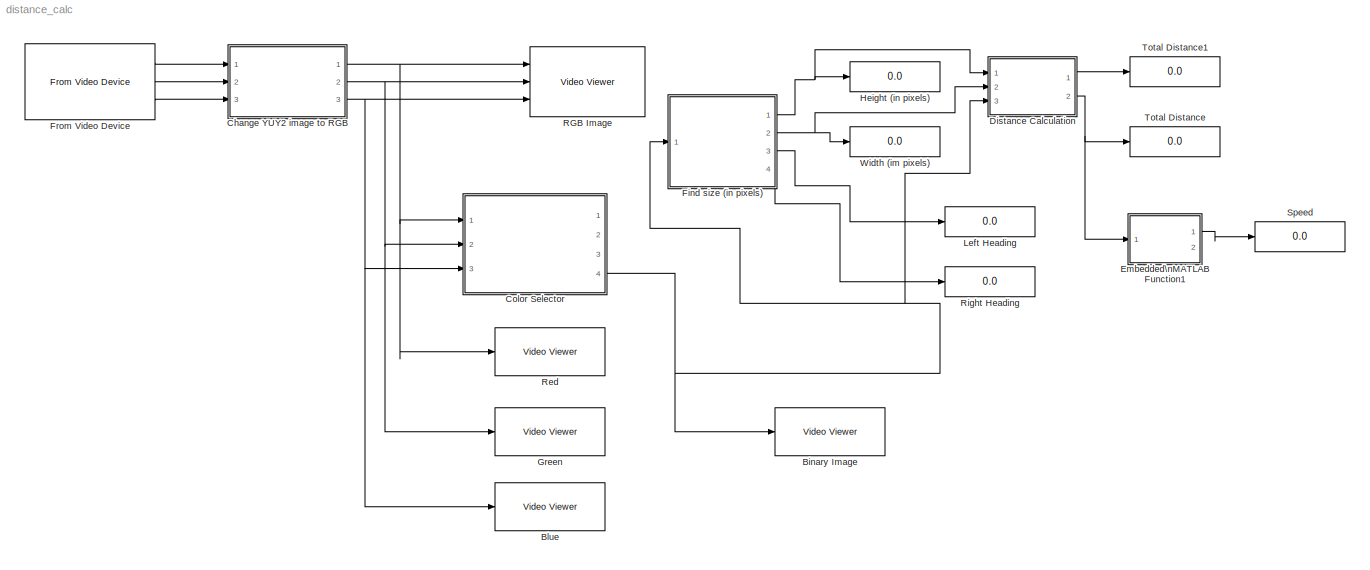
MODEL distance_calc
KIND model
BLOCK [Reference] Binary Image  REF=visionsinks/Video Viewer
  AxisZoom = on
  FigPos = [112 381 430 251]
  OpenAtMdlStart = on
  Ports = [1]
  SID = 1
  SourceBlock = visionsinks/Video Viewer
  SourceType = Video Viewer
  UserData = DataTag0
  UserDataPersistent = on
  colormapValue = gray(256)
  imagePorts = One multidimensional signal
  inputType = Obsolete7b
  maxInputVal = 255
  minInputVal = 0
  specRange = off
  trueSizedOnce = off
  useColorMap = off
BLOCK [Reference] Blue  REF=visionsinks/Video Viewer
  AxisZoom = on
  FigPos = [42 561 423 342]
  OpenAtMdlStart = on
  Ports = [1]
  SID = 27
  SourceBlock = visionsinks/Video Viewer
  SourceType = Video Viewer
  UserData = DataTag1
  UserDataPersistent = on
  colormapValue = gray(256)
  imagePorts = One multidimensional signal
  inputType = Obsolete7b
  maxInputVal = 255
  minInputVal = 0
  specRange = off
  trueSizedOnce = off
  useColorMap = off
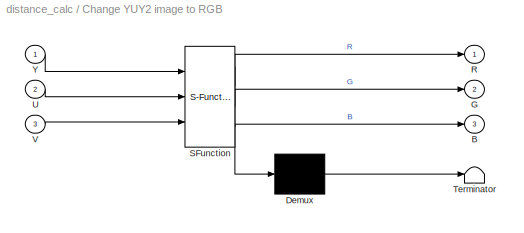
BLOCK [SubSystem] Change YUY2 image to RGB
  ErrorFcn = Stateflow.Translate.translate
  FunctionWithSeparateData = off
  MaskDescription = Embedded MATLAB block
  MaskDisplay = bgColor = Simulink.Root.ColorString2Rgb(get_param(gcbh, 'BackgroundColor')); image(imread('private/eml_membrane_16.png','png','BackgroundColor',bgColor(1:3)),'center'); disp([10 10 'YUY2toRGB']);
  MaskHideContents = off
  MaskIconFrame = on
  MaskIconOpaque = off
  MaskIconRotate = none
  MaskIconUnits = normalized
  MaskPortRotate = default
  MaskSelfModifiable = on
  MaskType = Stateflow
  MinAlgLoopOccurrences = off
  Opaque = off
  PermitHierarchicalResolution = ExplicitOnly
  Ports = [3, 3]
  PropExecContextOutsideSubsystem = off
  RTWSystemCode = Auto
  RequestExecContextInheritance = off
  SFBlockType = MATLAB Function
  SID = 3
  TreatAsAtomicUnit = on
BLOCK [Demux] Change YUY2 image to RGB/ Demux 
  Outputs = 1
  Ports = [1, 1]
  SID = 3::23
BLOCK [S-Function] Change YUY2 image to RGB/ SFunction 
  EnableBusSupport = on
  FunctionName = sf_sfun
  PortCounts = [3 4]
  Ports = [3, 4]
  SID = 3::22
  Tag = Stateflow S-Function distance_calc 1
BLOCK [Terminator] Change YUY2 image to RGB/ Terminator 
  SID = 3::25
BLOCK [Outport] Change YUY2 image to RGB/B
  IconDisplay = Port number
  Port = 3
  SID = 3::19
BLOCK [Outport] Change YUY2 image to RGB/G
  IconDisplay = Port number
  Port = 2
  SID = 3::18
BLOCK [Outport] Change YUY2 image to RGB/R
  IconDisplay = Port number
  SID = 3::5
BLOCK [Inport] Change YUY2 image to RGB/U
  IconDisplay = Port number
  Port = 2
  SID = 3::20
BLOCK [Inport] Change YUY2 image to RGB/V
  IconDisplay = Port number
  Port = 3
  SID = 3::21
BLOCK [Inport] Change YUY2 image to RGB/Y
  IconDisplay = Port number
  SID = 3::1
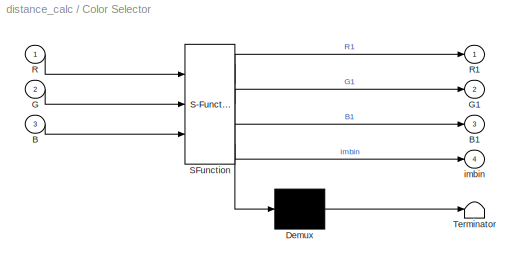
BLOCK [SubSystem] Color Selector
  ErrorFcn = Stateflow.Translate.translate
  FunctionWithSeparateData = off
  MaskDescription = Embedded MATLAB block
  MaskDisplay = bgColor = Simulink.Root.ColorString2Rgb(get_param(gcbh, 'BackgroundColor')); image(imread('private/eml_membrane_16.png','png','BackgroundColor',bgColor(1:3)),'center'); disp([10 10 'color_selection']);
  MaskHideContents = off
  MaskIconFrame = on
  MaskIconOpaque = off
  MaskIconRotate = none
  MaskIconUnits = normalized
  MaskPortRotate = default
  MaskSelfModifiable = on
  MaskType = Stateflow
  MinAlgLoopOccurrences = off
  Opaque = off
  PermitHierarchicalResolution = ExplicitOnly
  Ports = [3, 4]
  PropExecContextOutsideSubsystem = off
  RTWSystemCode = Auto
  RequestExecContextInheritance = off
  SFBlockType = MATLAB Function
  SID = 5
  TreatAsAtomicUnit = on
BLOCK [Demux] Color Selector/ Demux 
  Outputs = 1
  Ports = [1, 1]
  SID = 5::24
BLOCK [S-Function] Color Selector/ SFunction 
  EnableBusSupport = on
  FunctionName = sf_sfun
  PortCounts = [3 5]
  Ports = [3, 5]
  SID = 5::23
  Tag = Stateflow S-Function distance_calc 2
BLOCK [Terminator] Color Selector/ Terminator 
  SID = 5::26
BLOCK [Inport] Color Selector/B
  IconDisplay = Port number
  Port = 3
  SID = 5::19
BLOCK [Outport] Color Selector/B1
  IconDisplay = Port number
  Port = 3
  SID = 5::21
BLOCK [Inport] Color Selector/G
  IconDisplay = Port number
  Port = 2
  SID = 5::18
BLOCK [Outport] Color Selector/G1
  IconDisplay = Port number
  Port = 2
  SID = 5::20
BLOCK [Inport] Color Selector/R
  IconDisplay = Port number
  SID = 5::1
BLOCK [Outport] Color Selector/R1
  IconDisplay = Port number
  SID = 5::5
BLOCK [Outport] Color Selector/imbin
  IconDisplay = Port number
  Port = 4
  SID = 5::22
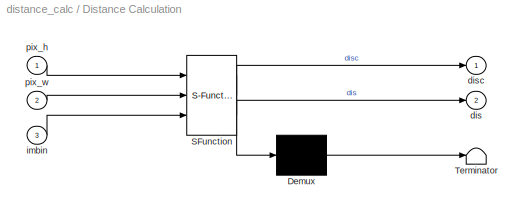
BLOCK [SubSystem] Distance Calculation
  ErrorFcn = Stateflow.Translate.translate
  FunctionWithSeparateData = off
  MaskDescription = Embedded MATLAB block
  MaskDisplay = bgColor = Simulink.Root.ColorString2Rgb(get_param(gcbh, 'BackgroundColor')); image(imread('private/eml_membrane_16.png','png','BackgroundColor',bgColor(1:3)),'center'); disp([10 10 'find_dis']);
  MaskHideContents = off
  MaskIconFrame = on
  MaskIconOpaque = off
  MaskIconRotate = none
  MaskIconUnits = normalized
  MaskPortRotate = default
  MaskSelfModifiable = on
  MaskType = Stateflow
  MinAlgLoopOccurrences = off
  Opaque = off
  PermitHierarchicalResolution = ExplicitOnly
  Ports = [3, 2]
  PropExecContextOutsideSubsystem = off
  RTWSystemCode = Auto
  RequestExecContextInheritance = off
  SFBlockType = MATLAB Function
  SID = 6
  TreatAsAtomicUnit = on
BLOCK [Demux] Distance Calculation/ Demux 
  Outputs = 1
  Ports = [1, 1]
  SID = 6::22
BLOCK [S-Function] Distance Calculation/ SFunction 
  EnableBusSupport = on
  FunctionName = sf_sfun
  PortCounts = [3 3]
  Ports = [3, 3]
  SID = 6::21
  Tag = Stateflow S-Function distance_calc 5
BLOCK [Terminator] Distance Calculation/ Terminator 
  SID = 6::24
BLOCK [Outport] Distance Calculation/dis
  IconDisplay = Port number
  Port = 2
  SID = 6::5
BLOCK [Outport] Distance Calculation/disc
  IconDisplay = Port number
  SID = 6::20
BLOCK [Inport] Distance Calculation/imbin
  IconDisplay = Port number
  Port = 3
  SID = 6::19
BLOCK [Inport] Distance Calculation/pix_h
  IconDisplay = Port number
  SID = 6::1
BLOCK [Inport] Distance Calculation/pix_w
  IconDisplay = Port number
  Port = 2
  SID = 6::18
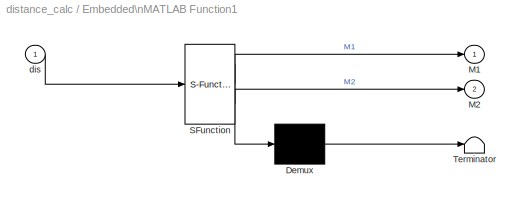
BLOCK [SubSystem] Embedded\nMATLAB Function1
  ErrorFcn = Stateflow.Translate.translate
  FunctionWithSeparateData = off
  MaskDescription = Embedded MATLAB block
  MaskDisplay = bgColor = Simulink.Root.ColorString2Rgb(get_param(gcbh, 'BackgroundColor')); image(imread('private/eml_membrane_16.png','png','BackgroundColor',bgColor(1:3)),'center'); disp([10 10 'fcn']);
  MaskHideContents = off
  MaskIconFrame = on
  MaskIconOpaque = off
  MaskIconRotate = none
  MaskIconUnits = normalized
  MaskPortRotate = default
  MaskSelfModifiable = on
  MaskType = Stateflow
  MinAlgLoopOccurrences = off
  Opaque = off
  PermitHierarchicalResolution = ExplicitOnly
  Ports = [1, 2]
  PropExecContextOutsideSubsystem = off
  RTWSystemCode = Auto
  RequestExecContextInheritance = off
  SFBlockType = MATLAB Function
  SID = 28
  TreatAsAtomicUnit = on
BLOCK [Demux] Embedded\nMATLAB Function1/ Demux 
  Outputs = 1
  Ports = [1, 1]
  SID = 28::8
BLOCK [S-Function] Embedded\nMATLAB Function1/ SFunction 
  EnableBusSupport = on
  FunctionName = sf_sfun
  PortCounts = [1 3]
  Ports = [1, 3]
  SID = 28::7
  Tag = Stateflow S-Function distance_calc 7
BLOCK [Terminator] Embedded\nMATLAB Function1/ Terminator 
  SID = 28::10
BLOCK [Outport] Embedded\nMATLAB Function1/M1
  IconDisplay = Port number
  SID = 28::5
BLOCK [Outport] Embedded\nMATLAB Function1/M2
  IconDisplay = Port number
  Port = 2
  SID = 28::6
BLOCK [Inport] Embedded\nMATLAB Function1/dis
  IconDisplay = Port number
  SID = 28::1
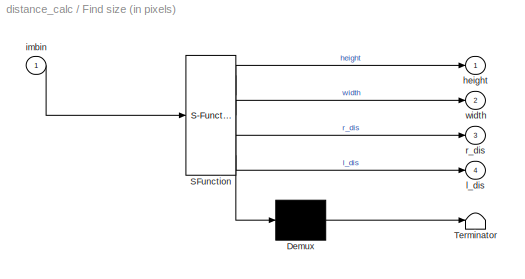
BLOCK [SubSystem] Find size (in pixels)
  ErrorFcn = Stateflow.Translate.translate
  FunctionWithSeparateData = off
  MaskDescription = Embedded MATLAB block
  MaskDisplay = bgColor = Simulink.Root.ColorString2Rgb(get_param(gcbh, 'BackgroundColor')); image(imread('private/eml_membrane_16.png','png','BackgroundColor',bgColor(1:3)),'center'); disp([10 10 'hw_find']);
  MaskHideContents = off
  MaskIconFrame = on
  MaskIconOpaque = off
  MaskIconRotate = none
  MaskIconUnits = normalized
  MaskPortRotate = default
  MaskSelfModifiable = on
  MaskType = Stateflow
  MinAlgLoopOccurrences = off
  Opaque = off
  PermitHierarchicalResolution = ExplicitOnly
  Ports = [1, 4]
  PropExecContextOutsideSubsystem = off
  RTWSystemCode = Auto
  RequestExecContextInheritance = off
  SFBlockType = MATLAB Function
  SID = 7
  TreatAsAtomicUnit = on
BLOCK [Demux] Find size (in pixels)/ Demux 
  Outputs = 1
  Ports = [1, 1]
  SID = 7::22
BLOCK [S-Function] Find size (in pixels)/ SFunction 
  EnableBusSupport = on
  FunctionName = sf_sfun
  PortCounts = [1 5]
  Ports = [1, 5]
  SID = 7::21
  Tag = Stateflow S-Function distance_calc 4
BLOCK [Terminator] Find size (in pixels)/ Terminator 
  SID = 7::24
BLOCK [Outport] Find size (in pixels)/height
  IconDisplay = Port number
  SID = 7::5
BLOCK [Inport] Find size (in pixels)/imbin
  IconDisplay = Port number
  SID = 7::1
BLOCK [Outport] Find size (in pixels)/l_dis
  IconDisplay = Port number
  Port = 4
  SID = 7::20
BLOCK [Outport] Find size (in pixels)/r_dis
  IconDisplay = Port number
  Port = 3
  SID = 7::19
BLOCK [Outport] Find size (in pixels)/width
  IconDisplay = Port number
  Port = 2
  SID = 7::18
BLOCK [Reference] From Video Device  REF=imaqlib/From Video Device
  BlockHandle = 77.0012
  CanDoHWTrigger = no
  DataType = uint8
  DevXMLPath = C:\\Program Files<path>
  Device = winvideo 1 (Microsoft LifeCam HD-3000)
  DeviceMenu = winvideo 1 (Microsoft LifeCam HD-3000)
  EnableHWTrigger = off
  EngLibPath = C:\\Program Files<path>
  EngXMLPath = C:\\Program Files<path>
  ObjConstructor = videoinput('winvideo', 1)
  OutputPortsMode = Separate color signals
  Ports = [0, 3]
  ROIColumn = 0
  ROIHeight = 360
  ROIPosition = [0 0 360 640]
  ROIRow = 0
  ROIWidth = 640
  ReturnedColorSpace = YCbCr
  SID = 9
  SampleTime = 1/30
  SourceBlock = imaqlib/From Video Device
  SourceType = From Video Device
  TriggerConfiguration = none/none
  UserData = DataTag2
  UserDataPersistent = on
  VideoFormat = YUY2_640x360
  VideoFormatMenu = YUY2_1280x720
  VideoSource = input1
BLOCK [Reference] Green  REF=visionsinks/Video Viewer
  AxisZoom = on
  FigPos = [489 563 423 342]
  OpenAtMdlStart = on
  Ports = [1]
  SID = 26
  SourceBlock = visionsinks/Video Viewer
  SourceType = Video Viewer
  UserData = DataTag3
  UserDataPersistent = on
  colormapValue = gray(256)
  imagePorts = One multidimensional signal
  inputType = Obsolete7b
  maxInputVal = 255
  minInputVal = 0
  specRange = off
  trueSizedOnce = off
  useColorMap = off
BLOCK [Display] Height (in pixels)
  Decimation = 1
  Lockdown = off
  Ports = [1]
  SID = 11
BLOCK [Display] Left Heading
  Decimation = 1
  Lockdown = off
  Ports = [1]
  SID = 12
BLOCK [Reference] RGB Image  REF=visionsinks/Video Viewer
  AxisZoom = on
  FigPos = [84 648 822 453]
  OpenAtMdlStart = on
  Ports = [3]
  SID = 13
  SourceBlock = visionsinks/Video Viewer
  SourceType = Video Viewer
  UserData = DataTag4
  UserDataPersistent = on
  colormapValue = gray(256)
  imagePorts = Separate color signals
  inputType = Obsolete7b
  maxInputVal = 255
  minInputVal = 0
  specRange = off
  trueSizedOnce = off
  useColorMap = off
BLOCK [Reference] Red  REF=visionsinks/Video Viewer
  AxisZoom = on
  FigPos = [917 555 423 342]
  OpenAtMdlStart = on
  Ports = [1]
  SID = 25
  SourceBlock = visionsinks/Video Viewer
  SourceType = Video Viewer
  UserData = DataTag5
  UserDataPersistent = on
  colormapValue = gray(256)
  imagePorts = One multidimensional signal
  inputType = Obsolete7b
  maxInputVal = 255
  minInputVal = 0
  specRange = off
  trueSizedOnce = off
  useColorMap = off
BLOCK [Display] Right Heading
  Decimation = 1
  Lockdown = off
  Ports = [1]
  SID = 15
BLOCK [Display] Speed
  Decimation = 1
  Lockdown = off
  Ports = [1]
  SID = 29
BLOCK [Display] Total Distance
  Decimation = 1
  Lockdown = off
  Ports = [1]
  SID = 16
BLOCK [Display] Total Distance1
  Decimation = 1
  Lockdown = off
  Ports = [1]
  SID = 18
BLOCK [Display] Width (im pixels)
  Decimation = 1
  Lockdown = off
  Ports = [1]
  SID = 17
LINE Change YUY2 image to RGB/ Demux :1 -> Change YUY2 image to RGB/ Terminator :1
LINE Change YUY2 image to RGB/ SFunction :1 -> Change YUY2 image to RGB/ Demux :1
LINE Change YUY2 image to RGB/ SFunction :2 -> Change YUY2 image to RGB/R:1
LINE Change YUY2 image to RGB/ SFunction :3 -> Change YUY2 image to RGB/G:1
LINE Change YUY2 image to RGB/ SFunction :4 -> Change YUY2 image to RGB/B:1
LINE Change YUY2 image to RGB/U:1 -> Change YUY2 image to RGB/ SFunction :2
LINE Change YUY2 image to RGB/V:1 -> Change YUY2 image to RGB/ SFunction :3
LINE Change YUY2 image to RGB/Y:1 -> Change YUY2 image to RGB/ SFunction :1
NET Change YUY2 image to RGB:1 -> Color Selector:1, RGB Image:1, Red:1
NET Change YUY2 image to RGB:2 -> Color Selector:2, Green:1, RGB Image:2
NET Change YUY2 image to RGB:3 -> Blue:1, Color Selector:3, RGB Image:3
LINE Color Selector/ Demux :1 -> Color Selector/ Terminator :1
LINE Color Selector/ SFunction :1 -> Color Selector/ Demux :1
LINE Color Selector/ SFunction :2 -> Color Selector/R1:1
LINE Color Selector/ SFunction :3 -> Color Selector/G1:1
LINE Color Selector/ SFunction :4 -> Color Selector/B1:1
LINE Color Selector/ SFunction :5 -> Color Selector/imbin:1
LINE Color Selector/B:1 -> Color Selector/ SFunction :3
LINE Color Selector/G:1 -> Color Selector/ SFunction :2
LINE Color Selector/R:1 -> Color Selector/ SFunction :1
NET Color Selector:4 -> Binary Image:1, Distance Calculation:3, Find size (in pixels):1
LINE Distance Calculation/ Demux :1 -> Distance Calculation/ Terminator :1
LINE Distance Calculation/ SFunction :1 -> Distance Calculation/ Demux :1
LINE Distance Calculation/ SFunction :2 -> Distance Calculation/disc:1
LINE Distance Calculation/ SFunction :3 -> Distance Calculation/dis:1
LINE Distance Calculation/imbin:1 -> Distance Calculation/ SFunction :3
LINE Distance Calculation/pix_h:1 -> Distance Calculation/ SFunction :1
LINE Distance Calculation/pix_w:1 -> Distance Calculation/ SFunction :2
LINE Distance Calculation:1 -> Total Distance1:1
NET Distance Calculation:2 -> Embedded\nMATLAB Function1:1, Total Distance:1
LINE Embedded\nMATLAB Function1/ Demux :1 -> Embedded\nMATLAB Function1/ Terminator :1
LINE Embedded\nMATLAB Function1/ SFunction :1 -> Embedded\nMATLAB Function1/ Demux :1
LINE Embedded\nMATLAB Function1/ SFunction :2 -> Embedded\nMATLAB Function1/M1:1
LINE Embedded\nMATLAB Function1/ SFunction :3 -> Embedded\nMATLAB Function1/M2:1
LINE Embedded\nMATLAB Function1/dis:1 -> Embedded\nMATLAB Function1/ SFunction :1
LINE Embedded\nMATLAB Function1:1 -> Speed:1
LINE Find size (in pixels)/ Demux :1 -> Find size (in pixels)/ Terminator :1
LINE Find size (in pixels)/ SFunction :1 -> Find size (in pixels)/ Demux :1
LINE Find size (in pixels)/ SFunction :2 -> Find size (in pixels)/height:1
LINE Find size (in pixels)/ SFunction :3 -> Find size (in pixels)/width:1
LINE Find size (in pixels)/ SFunction :4 -> Find size (in pixels)/r_dis:1
LINE Find size (in pixels)/ SFunction :5 -> Find size (in pixels)/l_dis:1
LINE Find size (in pixels)/imbin:1 -> Find size (in pixels)/ SFunction :1
NET Find size (in pixels):1 -> Distance Calculation:1, Height (in pixels):1
NET Find size (in pixels):2 -> Distance Calculation:2, Width (im pixels):1
LINE Find size (in pixels):3 -> Left Heading:1
LINE Find size (in pixels):4 -> Right Heading:1
LINE From Video Device:1 -> Change YUY2 image to RGB:1
LINE From Video Device:2 -> Change YUY2 image to RGB:2
LINE From Video Device:3 -> Change YUY2 image to RGB:3
note: NET lines group one-source signal fan-out (src -> all destinations, sorted); 1:1 wires keep LINE
CHART Change YUY2 image to RGB states=1 transitions=1
  STATE_LABEL 'eML_blk_kernel()'
CHART Color Selector states=1 transitions=1
  STATE_LABEL 'eML_blk_kernel()'
CHART Find size (in pixels) states=1 transitions=1
  STATE_LABEL 'eML_blk_kernel()'
CHART Distance Calculation states=1 transitions=1
  STATE_LABEL 'eML_blk_kernel()'
CHART Embedded\nMATLAB Function1 states=1 transitions=1
  STATE_LABEL 'eML_blk_kernel()'
note: 3 file-system paths scrubbed to <path> (not preserved elsewhere — flat text is the only slx artifact)
